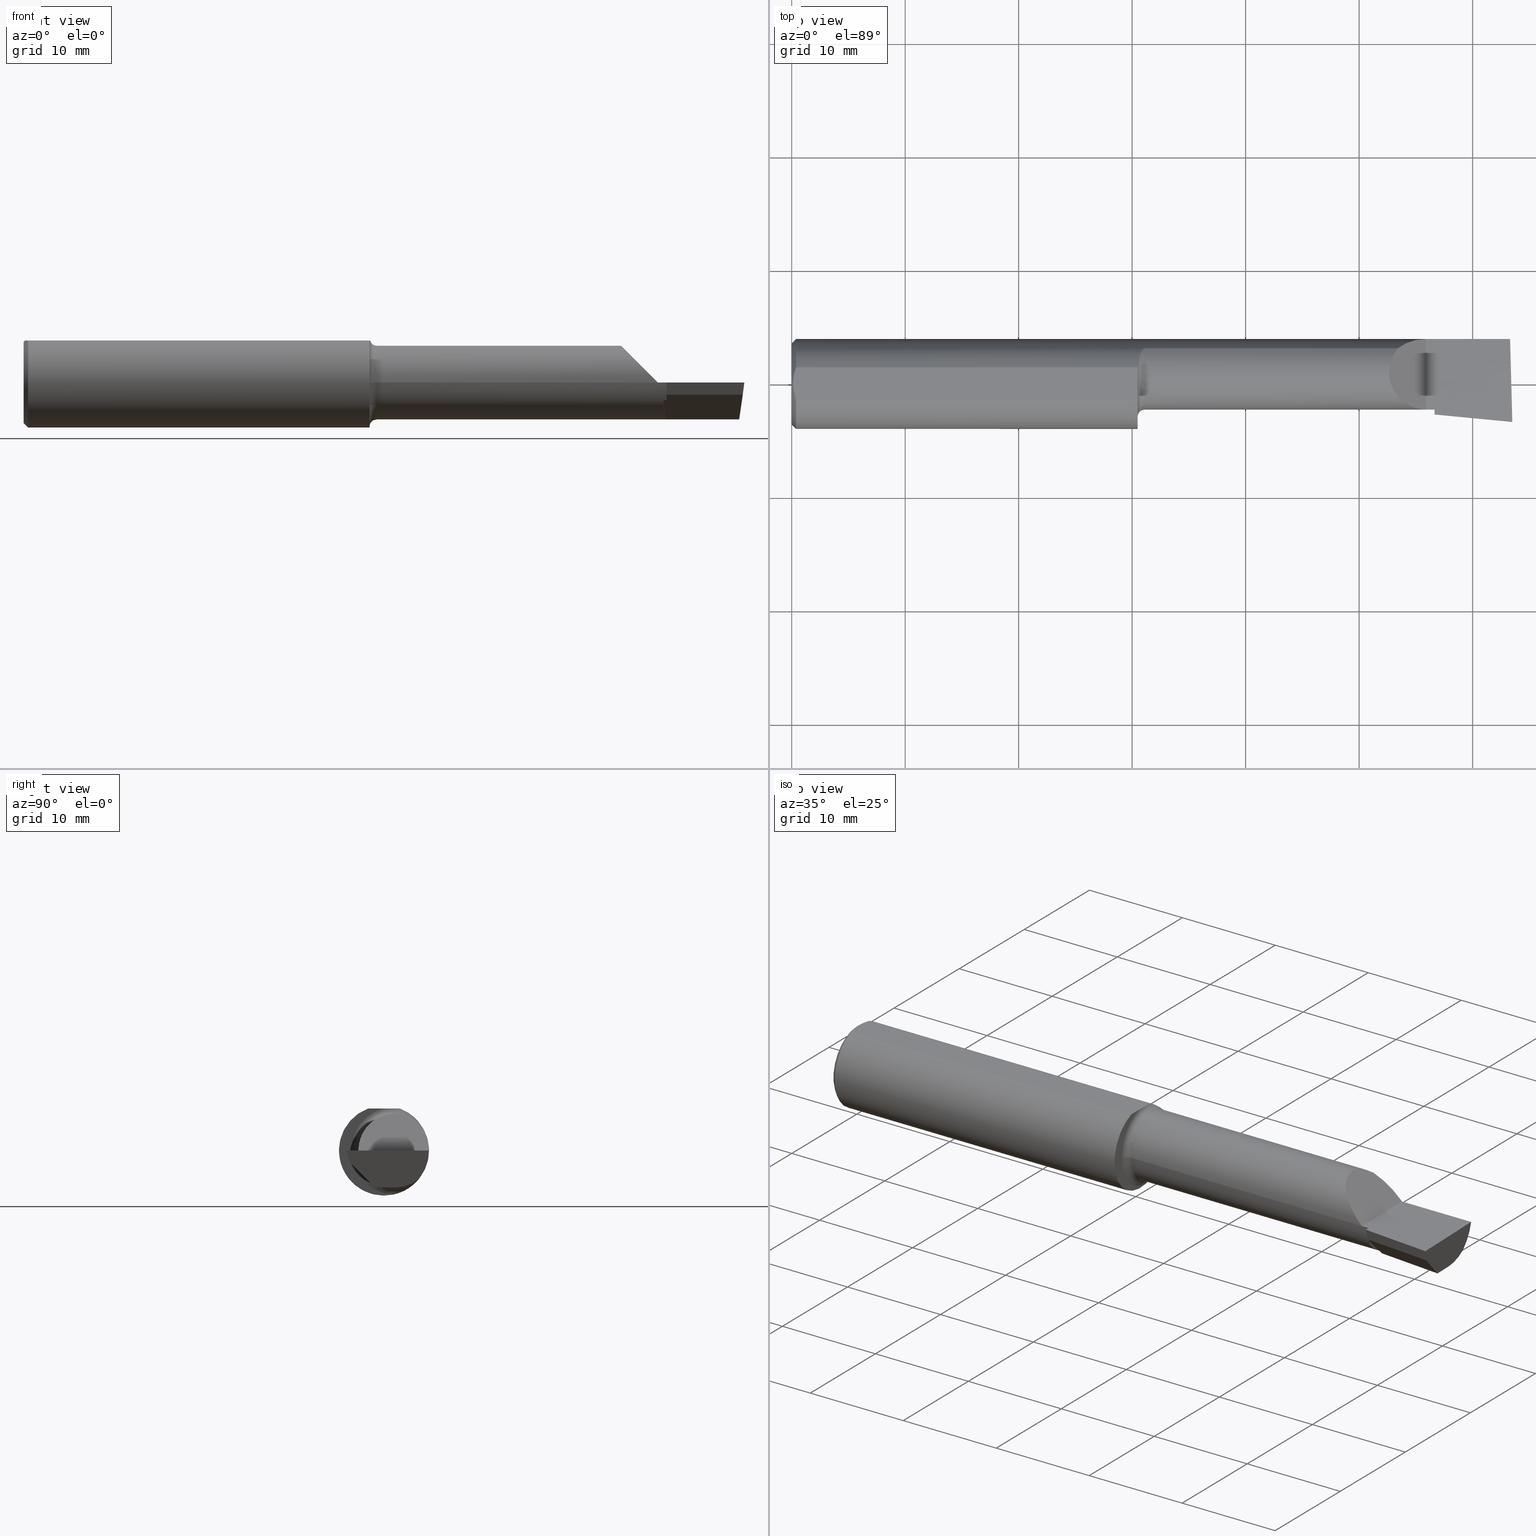
[diagram: canonical four-view strip — front | top / right | iso, engineering-drawing reading convention]
A machine part, canonical four-view strip (front | top / right | iso — engineering-drawing reading convention). The complete STEP part file that produces these views, byte-faithful:
ISO-10303-21;
HEADER;
FILE_DESCRIPTION (( 'STEP AP203' ),
    '1' );
FILE_NAME ('212037-LHB2901250.STEP',
    '2024-08-27T16:55:29',
    ( '' ),
    ( '' ),
    'SwSTEP 2.0',
    'SolidWorks 2024',
    '' );
FILE_SCHEMA (( 'CONFIG_CONTROL_DESIGN' ));
ENDSEC;

DATA;
#1 = CARTESIAN_POINT ( 'NONE',  ( 0.000000000000000000, 0.000000000000000000, 0.000000000000000000 ) ) ;
#2 = AXIS2_PLACEMENT_3D ( 'NONE', #285, #118, #595 ) ;
#3 = ORIENTED_EDGE ( 'NONE', *, *, #632, .F. ) ;
#4 = EDGE_CURVE ( 'NONE', #593, #651, #60, .T. ) ;
#5 = APPROVAL_DATE_TIME ( #485, #508 ) ;
#6 = DIRECTION ( 'NONE',  ( 0.000000000000000000, 0.000000000000000000, 1.000000000000000000 ) ) ;
#7 = PRODUCT_DEFINITION ( 'UNKNOWN', '', #658, #606 ) ;
#8 = LINE ( 'NONE', #337, #645 ) ;
#9 = LINE ( 'NONE', #303, #270 ) ;
#10 = VECTOR ( 'NONE', #161, 39.37007874015748854 ) ;
#11 = LOCAL_TIME ( 9, 55, 29.00000000000000000, #373 ) ;
#12 = ORIENTED_EDGE ( 'NONE', *, *, #97, .T. ) ;
#13 = CARTESIAN_POINT ( 'NONE',  ( 0.01499999999999999424, 0.000000000000000000, -0.1560999999999999888 ) ) ;
#14 = EDGE_CURVE ( 'NONE', #144, #535, #437, .T. ) ;
#15 = FACE_OUTER_BOUND ( 'NONE', #570, .T. ) ;
#16 = VERTEX_POINT ( 'NONE', #379 ) ;
#17 = CARTESIAN_POINT ( 'NONE',  ( 2.500000000000000000, 0.03899999999999996525, -0.1279000000000000137 ) ) ;
#18 = CARTESIAN_POINT ( 'NONE',  ( 2.200000000000000178, -0.08890000000000010394, 9.797174393178826150E-17 ) ) ;
#19 = VERTEX_POINT ( 'NONE', #533 ) ;
#20 = CARTESIAN_POINT ( 'NONE',  ( 2.229999999999999982, -0.07288638121117577140, -0.06196650465749590359 ) ) ;
#21 = CARTESIAN_POINT ( 'NONE',  ( 2.073458044061706751, -0.08890000000000006231, 0.1265419559382920667 ) ) ;
#22 = EDGE_CURVE ( 'NONE', #524, #364, #44, .T. ) ;
#23 = VERTEX_POINT ( 'NONE', #219 ) ;
#24 = EDGE_CURVE ( 'NONE', #576, #466, #314, .T. ) ;
#25 = DIRECTION ( 'NONE',  ( 1.000000000000000000, 0.000000000000000000, 0.000000000000000000 ) ) ;
#26 = CARTESIAN_POINT ( 'NONE',  ( 0.01499999999999999424, 0.000000000000000000, 0.000000000000000000 ) ) ;
#27 = B_SPLINE_CURVE_WITH_KNOTS ( 'NONE', 3,
 ( #255, #358, #202, #210, #371, #42 ),
 .UNSPECIFIED., .F., .F.,
 ( 4, 2, 4 ),
 ( 0.002884734412378666280, 0.003593604306281239329, 0.004302474200183812811 ),
 .UNSPECIFIED. ) ;
#28 = VERTEX_POINT ( 'NONE', #649 ) ;
#29 = CC_DESIGN_PERSON_AND_ORGANIZATION_ASSIGNMENT ( #332, #540, ( #658 ) ) ;
#30 = CARTESIAN_POINT ( 'NONE',  ( 1.199999999999999956, 0.03899999999999998607, 0.000000000000000000 ) ) ;
#31 = DIRECTION ( 'NONE',  ( -0.02677973311239118664, 0.9996413586354002678, 2.612414329932813452E-18 ) ) ;
#32 = EDGE_LOOP ( 'NONE', ( #694, #669, #361, #309, #411, #679 ) ) ;
#33 = LENGTH_MEASURE_WITH_UNIT ( LENGTH_MEASURE( 0.02539999999999999897 ), #86 );
#34 = CARTESIAN_POINT ( 'NONE',  ( 0.01499999999999999944, -0.05497272050753897882, 0.1461000000000000076 ) ) ;
#35 = ORIENTED_EDGE ( 'NONE', *, *, #653, .T. ) ;
#36 = AXIS2_PLACEMENT_3D ( 'NONE', #119, #638, #222 ) ;
#37 = CARTESIAN_POINT ( 'NONE',  ( 0.000000000000000000, -0.05497272050753897882, 0.1461000000000000076 ) ) ;
#38 = ORIENTED_EDGE ( 'NONE', *, *, #286, .F. ) ;
#39 = DIRECTION ( 'NONE',  ( -0.000000000000000000, 2.362393828558074595E-16, 1.000000000000000000 ) ) ;
#40 =( BOUNDED_CURVE ( )  B_SPLINE_CURVE ( 3, ( #347, #561, #564, #394 ),
 .UNSPECIFIED., .F., .F. ) 
 B_SPLINE_CURVE_WITH_KNOTS ( ( 4, 4 ),
 ( 3.414788950605319062, 3.426164066945256437 ),
 .UNSPECIFIED. ) 
 CURVE ( )  GEOMETRIC_REPRESENTATION_ITEM ( )  RATIONAL_B_SPLINE_CURVE ( ( 1.000000000000000000, 0.9999892172564213144, 0.9999892172564213144, 1.000000000000000000 ) ) 
 REPRESENTATION_ITEM ( '' )  );
#41 = ORIENTED_EDGE ( 'NONE', *, *, #474, .T. ) ;
#42 = CARTESIAN_POINT ( 'NONE',  ( 0.01499999999999999424, 0.05497272050753903433, 0.1460999999999999521 ) ) ;
#43 = ORIENTED_EDGE ( 'NONE', *, *, #151, .T. ) ;
#44 =( BOUNDED_CURVE ( )  B_SPLINE_CURVE ( 3, ( #331, #480, #57, #383 ),
 .UNSPECIFIED., .F., .T. ) 
 B_SPLINE_CURVE_WITH_KNOTS ( ( 4, 4 ),
 ( 5.219635427496932323, 5.798005679412930213 ),
 .UNSPECIFIED. ) 
 CURVE ( )  GEOMETRIC_REPRESENTATION_ITEM ( )  RATIONAL_B_SPLINE_CURVE ( ( 1.000000000000000000, 0.9723177149240065376, 0.9723177149240065376, 1.000000000000000000 ) ) 
 REPRESENTATION_ITEM ( '' )  );
#45 = EDGE_CURVE ( 'NONE', #299, #527, #328, .T. ) ;
#46 = CARTESIAN_POINT ( 'NONE',  ( 0.009356849677356088302, -0.03706298561014170767, 0.1461000000000000354 ) ) ;
#47 = CC_DESIGN_APPROVAL ( #460, ( #658 ) ) ;
#48 = DIRECTION ( 'NONE',  ( -4.798168849487817696E-18, -0.7025528302622682242, 0.7116315905652844664 ) ) ;
#49 = CARTESIAN_POINT ( 'NONE',  ( 2.217581325552286042, -0.09140237746813982544, -0.04199999999999994016 ) ) ;
#50 = EDGE_LOOP ( 'NONE', ( #247, #312 ) ) ;
#51 = ADVANCED_FACE ( 'NONE', ( #596 ), #591, .F. ) ;
#52 = CARTESIAN_POINT ( 'NONE',  ( 2.229999999999999982, -0.07288638121117577140, -0.06196650465749590359 ) ) ;
#53 = PERSON_AND_ORGANIZATION ( #230, #283 ) ;
#54 = VECTOR ( 'NONE', #110, 39.37007874015748143 ) ;
#55 = AXIS2_PLACEMENT_3D ( 'NONE', #300, #25, #393 ) ;
#56 = DIRECTION ( 'NONE',  ( 1.000000000000000000, -6.829619984160658046E-18, 0.000000000000000000 ) ) ;
#57 = CARTESIAN_POINT ( 'NONE',  ( 2.220366584553311373, -0.06247635677146577693, -0.08177012336190633834 ) ) ;
#58 = DATE_TIME_ROLE ( 'classification_date' ) ;
#59 = FACE_OUTER_BOUND ( 'NONE', #50, .T. ) ;
#60 = LINE ( 'NONE', #335, #487 ) ;
#61 = CARTESIAN_POINT ( 'NONE',  ( 1.225000000000000089, 0.1221769230769226278, -0.09715971113303976947 ) ) ;
#62 = CARTESIAN_POINT ( 'NONE',  ( 2.229999999999999982, -0.1159019569866647642, 0.000000000000000000 ) ) ;
#63 = ORIENTED_EDGE ( 'NONE', *, *, #209, .T. ) ;
#64 = EDGE_CURVE ( 'NONE', #364, #593, #320, .T. ) ;
#65 = CARTESIAN_POINT ( 'NONE',  ( 1.225000000000000089, 0.1221769230769225167, 0.09715971113303982498 ) ) ;
#66 = CARTESIAN_POINT ( 'NONE',  ( 2.488065891762460069, 0.1561000000000000443, -0.03563149886036994646 ) ) ;
#67 = VERTEX_POINT ( 'NONE', #112 ) ;
#68 = EDGE_CURVE ( 'NONE', #506, #67, #357, .T. ) ;
#69 = PRODUCT ( '212037-LHB2901250', '212037-LHB2901250', '', ( #482 ) ) ;
#70 = CARTESIAN_POINT ( 'NONE',  ( 1.211718925422504034, 0.1096997042182708271, -0.1111484413982584823 ) ) ;
#71 = CARTESIAN_POINT ( 'NONE',  ( 0.000000000000000000, 0.03899999999999999994, 0.000000000000000000 ) ) ;
#72 = ORIENTED_EDGE ( 'NONE', *, *, #642, .F. ) ;
#73 = EDGE_CURVE ( 'NONE', #67, #473, #175, .T. ) ;
#74 = DIRECTION ( 'NONE',  ( 1.000000000000000000, 0.000000000000000000, 0.000000000000000000 ) ) ;
#75 = LINE ( 'NONE', #440, #522 ) ;
#76 = ADVANCED_FACE ( 'NONE', ( #169 ), #601, .F. ) ;
#77 = ORIENTED_EDGE ( 'NONE', *, *, #14, .T. ) ;
#78 = CARTESIAN_POINT ( 'NONE',  ( 1.207643545987175049, 0.09968740490940219967, -0.1204690658458919816 ) ) ;
#79 = CARTESIAN_POINT ( 'NONE',  ( 2.102840288866959728, 0.1221769230769227388, 0.09715971113303956130 ) ) ;
#80 = VECTOR ( 'NONE', #31, 39.37007874015748854 ) ;
#81 = EDGE_LOOP ( 'NONE', ( #634, #296, #539 ) ) ;
#82 = VECTOR ( 'NONE', #242, 39.37007874015748143 ) ;
#83 = PLANE ( 'NONE',  #167 ) ;
#84 = CARTESIAN_POINT ( 'NONE',  ( 1.203337430773764538, 0.08212431379002424481, 0.1335735365034965150 ) ) ;
#85 = VERTEX_POINT ( 'NONE', #160 ) ;
#86 =( LENGTH_UNIT ( ) NAMED_UNIT ( * ) SI_UNIT ( $, .METRE. ) );
#87 = CARTESIAN_POINT ( 'NONE',  ( 1.200713348720346074, 0.05497272050753925637, 0.1460999999999999521 ) ) ;
#88 = ORIENTED_EDGE ( 'NONE', *, *, #603, .T. ) ;
#89 = DIRECTION ( 'NONE',  ( -1.000000000000000000, 6.829619984160658046E-18, -0.000000000000000000 ) ) ;
#90 = ORIENTED_EDGE ( 'NONE', *, *, #64, .T. ) ;
#91 = AXIS2_PLACEMENT_3D ( 'NONE', #500, #396, #179 ) ;
#92 = LINE ( 'NONE', #206, #129 ) ;
#93 = ORIENTED_EDGE ( 'NONE', *, *, #45, .T. ) ;
#94 = DIRECTION ( 'NONE',  ( -1.000000000000000000, 6.829619984160658046E-18, -0.000000000000000000 ) ) ;
#95 = EDGE_CURVE ( 'NONE', #23, #140, #8, .T. ) ;
#96 = VERTEX_POINT ( 'NONE', #587 ) ;
#97 = EDGE_CURVE ( 'NONE', #484, #449, #100, .T. ) ;
#98 = LINE ( 'NONE', #572, #199 ) ;
#99 = DATE_AND_TIME ( #586, #315 ) ;
#100 = LINE ( 'NONE', #324, #599 ) ;
#101 = CIRCLE ( 'NONE', #91, 0.1560999999999999888 ) ;
#102 = LINE ( 'NONE', #481, #412 ) ;
#103 = AXIS2_PLACEMENT_3D ( 'NONE', #30, #681, #156 ) ;
#104 = SHAPE_DEFINITION_REPRESENTATION ( #672, #316 ) ;
#105 = DIRECTION ( 'NONE',  ( 6.829619984160658046E-18, 1.000000000000000000, 0.000000000000000000 ) ) ;
#106 = CARTESIAN_POINT ( 'NONE',  ( 2.229999999999999982, -0.007794043580176791657, -0.1278999999999999859 ) ) ;
#107 = PERSON_AND_ORGANIZATION ( #230, #283 ) ;
#108 = DIRECTION ( 'NONE',  ( 0.02677973311239121093, -0.9996413586354002678, 2.361772610768839557E-16 ) ) ;
#109 = EDGE_LOOP ( 'NONE', ( #150, #395, #181, #244, #665, #267 ) ) ;
#110 = DIRECTION ( 'NONE',  ( -6.829619984160658816E-18, -1.000000000000000000, 6.755756298638184848E-34 ) ) ;
#111 = DATE_AND_TIME ( #594, #224 ) ;
#112 = CARTESIAN_POINT ( 'NONE',  ( 0.01499999999999999424, 0.000000000000000000, -0.1560999999999999888 ) ) ;
#113 = DIMENSIONAL_EXPONENTS ( 1.000000000000000000, 0.000000000000000000, 0.000000000000000000, 0.000000000000000000, 0.000000000000000000, 0.000000000000000000, 0.000000000000000000 ) ;
#114 =( BOUNDED_CURVE ( )  B_SPLINE_CURVE ( 3, ( #79, #243, #661, #664 ),
 .UNSPECIFIED., .F., .T. ) 
 B_SPLINE_CURVE_WITH_KNOTS ( ( 4, 4 ),
 ( 0.8989658999765571812, 1.570796326794896336 ),
 .UNSPECIFIED. ) 
 CURVE ( )  GEOMETRIC_REPRESENTATION_ITEM ( )  RATIONAL_B_SPLINE_CURVE ( ( 1.000000000000000000, 0.9627393467969929119, 0.9627393467969929119, 1.000000000000000000 ) ) 
 REPRESENTATION_ITEM ( '' )  );
#115 = PERSON_AND_ORGANIZATION ( #230, #283 ) ;
#116 = TOROIDAL_SURFACE ( 'NONE', #512, 0.1529000000000001191, 0.02500000000000000486 ) ;
#117 = SECURITY_CLASSIFICATION ( '', '', #644 ) ;
#118 = DIRECTION ( 'NONE',  ( -1.000000000000000000, 6.829619984160658046E-18, -0.000000000000000000 ) ) ;
#119 = CARTESIAN_POINT ( 'NONE',  ( 2.217581325552286042, -0.09140237746813982544, -0.04199999999999994016 ) ) ;
#120 = DIRECTION ( 'NONE',  ( -1.000000000000000000, 6.829619984160658046E-18, -0.000000000000000000 ) ) ;
#121 = CARTESIAN_POINT ( 'NONE',  ( 2.102840288866959728, 0.1221769230769227388, 0.09715971113303956130 ) ) ;
#122 = ORIENTED_EDGE ( 'NONE', *, *, #22, .F. ) ;
#123 = ADVANCED_FACE ( 'NONE', ( #430 ), #183, .T. ) ;
#124 = DIRECTION ( 'NONE',  ( -0.9953961983671787417, 0.09584575252022443925, 1.225797520252680601E-15 ) ) ;
#125 = ADVANCED_FACE ( 'NONE', ( #407 ), #139, .T. ) ;
#126 = EDGE_LOOP ( 'NONE', ( #502, #147, #278, #683 ) ) ;
#127 = CIRCLE ( 'NONE', #625, 0.1529000000000001191 ) ;
#128 = DIRECTION ( 'NONE',  ( 0.1020886612874973703, -0.7038430390621321919, 0.7029814233678642887 ) ) ;
#129 = VECTOR ( 'NONE', #621, 39.37007874015748143 ) ;
#130 = FACE_OUTER_BOUND ( 'NONE', #81, .T. ) ;
#131 = APPLICATION_CONTEXT ( 'configuration controlled 3d designs of mechanical parts and assemblies' ) ;
#132 = ORIENTED_EDGE ( 'NONE', *, *, #577, .T. ) ;
#133 = CARTESIAN_POINT ( 'NONE',  ( 0.01499999999999999424, 0.05497272050753903433, 0.1460999999999999521 ) ) ;
#134 = EDGE_CURVE ( 'NONE', #299, #85, #187, .T. ) ;
#135 = CARTESIAN_POINT ( 'NONE',  ( 2.229999999999999982, -0.1250987282888250673, -0.009079441937751871541 ) ) ;
#136 = ORIENTED_EDGE ( 'NONE', *, *, #577, .F. ) ;
#137 = CC_DESIGN_DATE_AND_TIME_ASSIGNMENT ( #330, #225, ( #7 ) ) ;
#138 = DIRECTION ( 'NONE',  ( -1.000000000000000000, 6.829619984160658046E-18, -0.000000000000000000 ) ) ;
#139 = CYLINDRICAL_SURFACE ( 'NONE', #282, 0.1279000000000000414 ) ;
#140 = VERTEX_POINT ( 'NONE', #298 ) ;
#141 = CARTESIAN_POINT ( 'NONE',  ( 2.229999999999999982, -0.09259815981058529266, -0.04199999999999994016 ) ) ;
#142 = CARTESIAN_POINT ( 'NONE',  ( 1.207875668882802067, 0.09985555054163969269, 0.1202116869044327213 ) ) ;
#143 = AXIS2_PLACEMENT_3D ( 'NONE', #458, #124, #402 ) ;
#144 = VERTEX_POINT ( 'NONE', #354 ) ;
#145 = CARTESIAN_POINT ( 'NONE',  ( 1.225000000000000089, 0.03899999999999999994, 0.000000000000000000 ) ) ;
#146 = CARTESIAN_POINT ( 'NONE',  ( 1.225000000000000089, 0.1221769230769225167, 0.09715971113303982498 ) ) ;
#147 = ORIENTED_EDGE ( 'NONE', *, *, #355, .F. ) ;
#148 = EDGE_CURVE ( 'NONE', #19, #144, #526, .T. ) ;
#149 = DIRECTION ( 'NONE',  ( -0.7071067811865507924, 0.000000000000000000, 0.7071067811865442421 ) ) ;
#150 = ORIENTED_EDGE ( 'NONE', *, *, #377, .F. ) ;
#151 = EDGE_CURVE ( 'NONE', #96, #237, #671, .T. ) ;
#152 = PLANE ( 'NONE',  #614 ) ;
#153 = ORIENTED_EDGE ( 'NONE', *, *, #134, .F. ) ;
#154 = AXIS2_PLACEMENT_3D ( 'NONE', #190, #138, #392 ) ;
#155 = EDGE_CURVE ( 'NONE', #85, #524, #40, .T. ) ;
#156 = DIRECTION ( 'NONE',  ( 0.000000000000000000, -1.000000000000000000, 0.000000000000000000 ) ) ;
#157 = EDGE_CURVE ( 'NONE', #535, #96, #75, .T. ) ;
#158 = ORIENTED_EDGE ( 'NONE', *, *, #499, .T. ) ;
#159 = COORDINATED_UNIVERSAL_TIME_OFFSET ( 8, 0, .BEHIND. ) ;
#160 = CARTESIAN_POINT ( 'NONE',  ( 2.229999999999999982, -0.02439791101555209216, -0.1110815685830198463 ) ) ;
#161 = DIRECTION ( 'NONE',  ( 0.1199690778467074614, -0.3102690083707258517, 0.9430485474275739355 ) ) ;
#162 = COORDINATED_UNIVERSAL_TIME_OFFSET ( 8, 0, .BEHIND. ) ;
#163 = ORIENTED_EDGE ( 'NONE', *, *, #696, .T. ) ;
#164 = ORIENTED_EDGE ( 'NONE', *, *, #475, .F. ) ;
#165 = VECTOR ( 'NONE', #509, 39.37007874015748143 ) ;
#166 = CARTESIAN_POINT ( 'NONE',  ( 1.217713039397279484, 0.1186710145423636176, 0.1014253537327265420 ) ) ;
#167 = AXIS2_PLACEMENT_3D ( 'NONE', #307, #628, #268 ) ;
#168 = COORDINATED_UNIVERSAL_TIME_OFFSET ( 8, 0, .BEHIND. ) ;
#169 = FACE_OUTER_BOUND ( 'NONE', #372, .T. ) ;
#170 = APPLICATION_CONTEXT ( 'configuration controlled 3d designs of mechanical parts and assemblies' ) ;
#171 = APPROVAL_STATUS ( 'not_yet_approved' ) ;
#172 = CARTESIAN_POINT ( 'NONE',  ( 2.200000000000000178, -0.2500000000000000555, 9.797174393178826150E-17 ) ) ;
#173 = APPROVAL_ROLE ( '' ) ;
#174 = VERTEX_POINT ( 'NONE', #236 ) ;
#175 = CIRCLE ( 'NONE', #345, 0.1560999999999999888 ) ;
#176 = CARTESIAN_POINT ( 'NONE',  ( 0.01499999999999999944, -0.05497272050753897882, 0.1461000000000000076 ) ) ;
#177 = DIRECTION ( 'NONE',  ( -6.829619984160658816E-18, -1.000000000000000000, 0.000000000000000000 ) ) ;
#178 = CARTESIAN_POINT ( 'NONE',  ( 2.229999999999999982, -0.2500000000000000555, 9.500418952277011559E-17 ) ) ;
#179 = DIRECTION ( 'NONE',  ( 0.000000000000000000, -1.000000000000000000, 0.000000000000000000 ) ) ;
#180 = CARTESIAN_POINT ( 'NONE',  ( 1.200713348720346074, 0.05497272050753925637, 0.1460999999999999521 ) ) ;
#181 = ORIENTED_EDGE ( 'NONE', *, *, #581, .F. ) ;
#182 = CARTESIAN_POINT ( 'NONE',  ( 1.213285512035948033, 0.1129012003027988348, -0.1078842078934687393 ) ) ;
#183 = CYLINDRICAL_SURFACE ( 'NONE', #467, 0.1279000000000000414 ) ;
#184 = ORIENTED_EDGE ( 'NONE', *, *, #653, .F. ) ;
#185 = VECTOR ( 'NONE', #233, 39.37007874015748143 ) ;
#186 = CARTESIAN_POINT ( 'NONE',  ( 1.220642477297819939, 0.1209866175416250689, -0.09864046781463561842 ) ) ;
#187 = LINE ( 'NONE', #135, #165 ) ;
#188 = EDGE_LOOP ( 'NONE', ( #184, #250, #620, #631, #518 ) ) ;
#189 = EDGE_CURVE ( 'NONE', #19, #535, #114, .T. ) ;
#190 = CARTESIAN_POINT ( 'NONE',  ( 1.225000000000000089, 0.03899999999999998607, 0.000000000000000000 ) ) ;
#191 = DIRECTION ( 'NONE',  ( 0.000000000000000000, -1.000000000000000000, 0.000000000000000000 ) ) ;
#192 = ORIENTED_EDGE ( 'NONE', *, *, #4, .T. ) ;
#193 = CARTESIAN_POINT ( 'NONE',  ( 2.500000000000000000, 0.03899999999999996525, -0.1279000000000000137 ) ) ;
#194 = B_SPLINE_CURVE_WITH_KNOTS ( 'NONE', 3,
 ( #180, #448, #84, #142, #575, #428, #198, #166, #682, #360, #626, #146 ),
 .UNSPECIFIED., .F., .F.,
 ( 4, 2, 2, 2, 2, 4 ),
 ( 5.609278044435371121E-07, 0.001139286486424878446, 0.001708649265735096272, 0.001993330655390204535, 0.002135671350217761486, 0.002278012045045318002 ),
 .UNSPECIFIED. ) ;
#195 = DIRECTION ( 'NONE',  ( -1.000000000000000000, 6.829619984160658046E-18, -0.000000000000000000 ) ) ;
#196 = ORIENTED_EDGE ( 'NONE', *, *, #443, .F. ) ;
#197 = CARTESIAN_POINT ( 'NONE',  ( 2.480278310775617889, 0.03899999999999996525, -0.1279000000000000137 ) ) ;
#198 = CARTESIAN_POINT ( 'NONE',  ( 1.214904289182652697, 0.1154277421181116453, 0.1051401666291003484 ) ) ;
#199 = VECTOR ( 'NONE', #329, 39.37007874015748143 ) ;
#200 = ADVANCED_FACE ( 'NONE', ( #558 ), #674, .T. ) ;
#201 = VERTEX_POINT ( 'NONE', #295 ) ;
#202 = CARTESIAN_POINT ( 'NONE',  ( 0.005929349363809115203, 0.01879672308419498561, 0.1461000000000000076 ) ) ;
#203 = CC_DESIGN_PERSON_AND_ORGANIZATION_ASSIGNMENT ( #107, #640, ( #69 ) ) ;
#204 = PLANE ( 'NONE',  #566 ) ;
#205 = ORIENTED_EDGE ( 'NONE', *, *, #155, .F. ) ;
#206 = CARTESIAN_POINT ( 'NONE',  ( 2.229999999999999982, -0.1068138160192008690, 0.002878732955684685201 ) ) ;
#207 = EDGE_LOOP ( 'NONE', ( #370, #302, #196, #263 ) ) ;
#208 = ADVANCED_FACE ( 'NONE', ( #15 ), #246, .F. ) ;
#209 = EDGE_CURVE ( 'NONE', #527, #85, #454, .T. ) ;
#210 = CARTESIAN_POINT ( 'NONE',  ( 0.009371209226504017067, 0.03711161584255317364, 0.1460999999999999799 ) ) ;
#211 = EDGE_LOOP ( 'NONE', ( #216, #463, #136, #289, #38, #424 ) ) ;
#212 = CIRCLE ( 'NONE', #258, 0.02500000000000000486 ) ;
#213 = APPROVAL_PERSON_ORGANIZATION ( #532, #310, #637 ) ;
#214 = CC_DESIGN_PERSON_AND_ORGANIZATION_ASSIGNMENT ( #432, #438, ( #658 ) ) ;
#215 = APPROVAL_ROLE ( '' ) ;
#216 = ORIENTED_EDGE ( 'NONE', *, *, #334, .T. ) ;
#217 = CARTESIAN_POINT ( 'NONE',  ( 2.500000000000000000, -0.2500000000000000555, 6.829619984160658046E-17 ) ) ;
#218 = APPLICATION_PROTOCOL_DEFINITION ( 'international standard', 'config_control_design', 1994, #170 ) ;
#219 = CARTESIAN_POINT ( 'NONE',  ( 2.229999999999999982, -0.1059019569866646027, 9.550796696599670198E-17 ) ) ;
#220 = DIRECTION ( 'NONE',  ( -1.000000000000000000, 6.829619984160658046E-18, 0.000000000000000000 ) ) ;
#221 = APPROVAL_STATUS ( 'not_yet_approved' ) ;
#222 = DIRECTION ( 'NONE',  ( 0.000000000000000000, -0.7025528302622682242, 0.7116315905652844664 ) ) ;
#223 = AXIS2_PLACEMENT_3D ( 'NONE', #520, #220, #643 ) ;
#224 = LOCAL_TIME ( 9, 55, 29.00000000000000000, #384 ) ;
#225 = DATE_TIME_ROLE ( 'creation_date' ) ;
#226 = DIRECTION ( 'NONE',  ( 1.000000000000000000, 0.000000000000000000, 0.000000000000000000 ) ) ;
#227 = DIRECTION ( 'NONE',  ( 1.000000000000000000, -6.829619984160658046E-18, 0.000000000000000000 ) ) ;
#228 = PERSON_AND_ORGANIZATION ( #230, #283 ) ;
#229 = CARTESIAN_POINT ( 'NONE',  ( 0.000000000000000000, 0.000000000000000000, 0.000000000000000000 ) ) ;
#230 = PERSON ( 'UNSPECIFIED', 'UNSPECIFIED', 'UNSPECIFIED', ('UNSPECIFIED'), ('UNSPECIFIED'), ('UNSPECIFIED') ) ;
#231 = CARTESIAN_POINT ( 'NONE',  ( 2.219243579197731631, -0.07413921331227923961, -0.05964837307989710041 ) ) ;
#232 = ADVANCED_FACE ( 'NONE', ( #501 ), #578, .T. ) ;
#233 = DIRECTION ( 'NONE',  ( -0.000000000000000000, 1.000000000000000000, -2.362393828558074595E-16 ) ) ;
#234 = AXIS2_PLACEMENT_3D ( 'NONE', #376, #431, #149 ) ;
#235 = DIRECTION ( 'NONE',  ( 0.1175789623991730093, 0.000000000000000000, 0.9930635365378863710 ) ) ;
#236 = CARTESIAN_POINT ( 'NONE',  ( 2.494657007549286654, -0.1180817311663149571, -0.04199999999999994016 ) ) ;
#237 = VERTEX_POINT ( 'NONE', #657 ) ;
#238 = UNCERTAINTY_MEASURE_WITH_UNIT (LENGTH_MEASURE( 1.000000000000000082E-05 ), #367, 'distance_accuracy_value', 'NONE');
#239 = LINE ( 'NONE', #610, #477 ) ;
#240 = DIRECTION ( 'NONE',  ( -1.000000000000000000, 6.829619984160658046E-18, -0.000000000000000000 ) ) ;
#241 = ORIENTED_EDGE ( 'NONE', *, *, #474, .F. ) ;
#242 = DIRECTION ( 'NONE',  ( 0.7071067811865390240, 0.000000000000000000, -0.7071067811865560104 ) ) ;
#243 = CARTESIAN_POINT ( 'NONE',  ( 2.130728481662468532, 0.1443546689866651578, 0.06927151833753088239 ) ) ;
#244 = ORIENTED_EDGE ( 'NONE', *, *, #97, .F. ) ;
#245 = CARTESIAN_POINT ( 'NONE',  ( 1.225000000000000089, 0.03899999999999999994, 0.000000000000000000 ) ) ;
#246 = PLANE ( 'NONE',  #143 ) ;
#247 = ORIENTED_EDGE ( 'NONE', *, *, #24, .T. ) ;
#248 = CARTESIAN_POINT ( 'NONE',  ( 2.200000000000000178, 0.1560999999999997667, 9.797174393178826150E-17 ) ) ;
#249 = PLANE ( 'NONE',  #234 ) ;
#250 = ORIENTED_EDGE ( 'NONE', *, *, #276, .T. ) ;
#251 = LINE ( 'NONE', #362, #304 ) ;
#252 = ADVANCED_FACE ( 'NONE', ( #130 ), #549, .F. ) ;
#253 = FACE_OUTER_BOUND ( 'NONE', #453, .T. ) ;
#254 = ORIENTED_EDGE ( 'NONE', *, *, #598, .T. ) ;
#255 = CARTESIAN_POINT ( 'NONE',  ( 0.005000000000000177913, 2.057148876208899831E-17, 0.1460999999999999799 ) ) ;
#256 = AXIS2_PLACEMENT_3D ( 'NONE', #385, #654, #6 ) ;
#257 = CARTESIAN_POINT ( 'NONE',  ( 0.005910707775482461519, -0.01866948012536269463, 0.1460999999999999799 ) ) ;
#258 = AXIS2_PLACEMENT_3D ( 'NONE', #415, #639, #678 ) ;
#259 = EDGE_LOOP ( 'NONE', ( #287, #12, #554, #93 ) ) ;
#260 = LOCAL_TIME ( 9, 55, 29.00000000000000000, #162 ) ;
#261 = DIRECTION ( 'NONE',  ( -0.9953961983671787417, 0.09584575252022423109, -1.833768617864262544E-17 ) ) ;
#262 = EDGE_CURVE ( 'NONE', #627, #546, #194, .T. ) ;
#263 = ORIENTED_EDGE ( 'NONE', *, *, #446, .F. ) ;
#264 = EDGE_CURVE ( 'NONE', #524, #364, #462, .T. ) ;
#265 = CARTESIAN_POINT ( 'NONE',  ( 1.200000000000000400, 0.04153761541478932784, -0.1507758181214158555 ) ) ;
#266 = CC_DESIGN_PERSON_AND_ORGANIZATION_ASSIGNMENT ( #490, #386, ( #7 ) ) ;
#267 = ORIENTED_EDGE ( 'NONE', *, *, #151, .F. ) ;
#268 = DIRECTION ( 'NONE',  ( 0.000000000000000000, -0.3019700370129921319, 0.9533174165755978757 ) ) ;
#269 = ORIENTED_EDGE ( 'NONE', *, *, #455, .F. ) ;
#270 = VECTOR ( 'NONE', #503, 39.37007874015748143 ) ;
#271 = LOCAL_TIME ( 9, 55, 29.00000000000000000, #168 ) ;
#272 = CARTESIAN_POINT ( 'NONE',  ( 0.005000000000000177913, 2.057148876208899831E-17, 0.1460999999999999799 ) ) ;
#273 = APPROVAL_DATE_TIME ( #99, #310 ) ;
#274 = DIRECTION ( 'NONE',  ( -1.000000000000000000, -0.000000000000000000, -0.000000000000000000 ) ) ;
#275 = DIRECTION ( 'NONE',  ( 1.000000000000000000, -6.829619984160658046E-18, 0.000000000000000000 ) ) ;
#276 = EDGE_CURVE ( 'NONE', #306, #28, #212, .T. ) ;
#277 = CARTESIAN_POINT ( 'NONE',  ( 2.226541365962205976, -0.07331194456661031811, -0.06119810979516131233 ) ) ;
#278 = ORIENTED_EDGE ( 'NONE', *, *, #598, .F. ) ;
#279 = CARTESIAN_POINT ( 'NONE',  ( 1.199999999999999956, 0.03217692307692246456, -0.1527476861405821784 ) ) ;
#280 = CALENDAR_DATE ( 2024, 27, 8 ) ;
#281 = ORIENTED_EDGE ( 'NONE', *, *, #155, .T. ) ;
#282 = AXIS2_PLACEMENT_3D ( 'NONE', #305, #240, #177 ) ;
#283 = ORGANIZATION ( 'UNSPECIFIED', 'UNSPECIFIED', '' ) ;
#284 = CALENDAR_DATE ( 2024, 27, 8 ) ;
#285 = CARTESIAN_POINT ( 'NONE',  ( 1.225000000000000089, 0.03899999999999998607, 0.000000000000000000 ) ) ;
#286 = EDGE_CURVE ( 'NONE', #473, #471, #629, .T. ) ;
#287 = ORIENTED_EDGE ( 'NONE', *, *, #584, .F. ) ;
#288 = EDGE_CURVE ( 'NONE', #174, #140, #418, .T. ) ;
#289 = ORIENTED_EDGE ( 'NONE', *, *, #655, .F. ) ;
#290 = CARTESIAN_POINT ( 'NONE',  ( 1.205770389155364830, 0.09238103948165153623, -0.1261792856732153745 ) ) ;
#291 = DIRECTION ( 'NONE',  ( 1.000000000000000000, -6.829619984160658046E-18, 0.000000000000000000 ) ) ;
#292 = EDGE_LOOP ( 'NONE', ( #496, #538, #573, #636 ) ) ;
#293 = AXIS2_PLACEMENT_3D ( 'NONE', #229, #507, #553 ) ;
#294 = CARTESIAN_POINT ( 'NONE',  ( 2.480278310775617889, 0.03899999999999996525, -0.1279000000000000137 ) ) ;
#295 = CARTESIAN_POINT ( 'NONE',  ( 1.199999999999999956, -0.05497272050753900657, 0.1461000000000000076 ) ) ;
#296 = ORIENTED_EDGE ( 'NONE', *, *, #134, .T. ) ;
#297 = CARTESIAN_POINT ( 'NONE',  ( 1.202778396491914537, 0.07658129683222554551, -0.1363479870192731980 ) ) ;
#298 = CARTESIAN_POINT ( 'NONE',  ( 2.500000000000000000, -0.1319000000000001283, 1.024442997624098707E-16 ) ) ;
#299 = VERTEX_POINT ( 'NONE', #106 ) ;
#300 = CARTESIAN_POINT ( 'NONE',  ( 0.01499999999999999424, 0.000000000000000000, 0.000000000000000000 ) ) ;
#301 = DIRECTION ( 'NONE',  ( 1.000000000000000000, 0.000000000000000000, 0.000000000000000000 ) ) ;
#302 = ORIENTED_EDGE ( 'NONE', *, *, #148, .F. ) ;
#303 = CARTESIAN_POINT ( 'NONE',  ( 2.217581325552286042, -0.09140237746813982544, -0.04199999999999994016 ) ) ;
#304 = VECTOR ( 'NONE', #94, 39.37007874015748143 ) ;
#305 = CARTESIAN_POINT ( 'NONE',  ( 0.000000000000000000, 0.03899999999999999994, 0.000000000000000000 ) ) ;
#306 = VERTEX_POINT ( 'NONE', #592 ) ;
#307 = CARTESIAN_POINT ( 'NONE',  ( 2.217581325552286042, -0.09140237746813982544, -0.04199999999999994016 ) ) ;
#308 = CARTESIAN_POINT ( 'NONE',  ( 1.200497536416571087, 0.01428560316177572564, 0.1461000000000000076 ) ) ;
#309 = ORIENTED_EDGE ( 'NONE', *, *, #14, .F. ) ;
#310 = APPROVAL ( #425, 'UNSPECIFIED' ) ;
#311 = LINE ( 'NONE', #517, #80 ) ;
#312 = ORIENTED_EDGE ( 'NONE', *, *, #455, .T. ) ;
#313 = DIRECTION ( 'NONE',  ( -1.000000000000000000, -0.000000000000000000, -0.000000000000000000 ) ) ;
#314 = CIRCLE ( 'NONE', #256, 0.1410999999999996146 ) ;
#315 = LOCAL_TIME ( 9, 55, 29.00000000000000000, #159 ) ;
#316 = ADVANCED_BREP_SHAPE_REPRESENTATION ( '212037-LHB2901250', ( #493, #579 ), #423 ) ;
#317 = EDGE_LOOP ( 'NONE', ( #3, #192, #478, #662 ) ) ;
#318 = FACE_OUTER_BOUND ( 'NONE', #259, .T. ) ;
#319 = EDGE_LOOP ( 'NONE', ( #521, #88, #641, #241, #163, #613, #63, #281, #408, #90, #419 ) ) ;
#320 =( BOUNDED_CURVE ( )  B_SPLINE_CURVE ( 3, ( #231, #387, #277, #52 ),
 .UNSPECIFIED., .F., .T. ) 
 B_SPLINE_CURVE_WITH_KNOTS ( ( 4, 4 ),
 ( 2.847793815029257658, 2.868396356574266282 ),
 .UNSPECIFIED. ) 
 CURVE ( )  GEOMETRIC_REPRESENTATION_ITEM ( )  RATIONAL_B_SPLINE_CURVE ( ( 1.000000000000000000, 0.9999646282529517372, 0.9999646282529517372, 1.000000000000000000 ) ) 
 REPRESENTATION_ITEM ( '' )  );
#321 = FACE_OUTER_BOUND ( 'NONE', #211, .T. ) ;
#322 = ORIENTED_EDGE ( 'NONE', *, *, #352, .F. ) ;
#323 = CARTESIAN_POINT ( 'NONE',  ( 1.199999999999999956, 0.004133650856201329452, 0.1460999999999999521 ) ) ;
#324 = CARTESIAN_POINT ( 'NONE',  ( 2.480292454266014079, 0.03847204783946026746, -0.1279000000000000137 ) ) ;
#325 = VECTOR ( 'NONE', #56, 39.37007874015748143 ) ;
#326 = ADVANCED_FACE ( 'NONE', ( #363 ), #249, .F. ) ;
#327 = CARTESIAN_POINT ( 'NONE',  ( 2.219243579197731631, -0.07413921331227923961, -0.05964837307989710041 ) ) ;
#328 = LINE ( 'NONE', #483, #185 ) ;
#329 = DIRECTION ( 'NONE',  ( 6.829619984160658046E-18, 1.000000000000000000, -1.656870447394628111E-16 ) ) ;
#330 = DATE_AND_TIME ( #284, #260 ) ;
#331 = CARTESIAN_POINT ( 'NONE',  ( 2.224155181711049423, -0.02313027091166865515, -0.1117955251181489279 ) ) ;
#332 = PERSON_AND_ORGANIZATION ( #230, #283 ) ;
#333 = EDGE_CURVE ( 'NONE', #144, #691, #479, .T. ) ;
#334 = EDGE_CURVE ( 'NONE', #201, #16, #98, .T. ) ;
#335 = CARTESIAN_POINT ( 'NONE',  ( 2.229999999999999982, -0.1250987282888250673, -0.009079441937751871541 ) ) ;
#336 = AXIS2_PLACEMENT_3D ( 'NONE', #697, #274, #543 ) ;
#337 = CARTESIAN_POINT ( 'NONE',  ( 2.511267271176985005, -0.1329849148174155893, 6.718165849964441477E-17 ) ) ;
#338 = FACE_OUTER_BOUND ( 'NONE', #109, .T. ) ;
#339 = CARTESIAN_POINT ( 'NONE',  ( 2.481689713451043833, 0.1221769230769228221, -0.09715971113303947804 ) ) ;
#340 = ORIENTED_EDGE ( 'NONE', *, *, #352, .T. ) ;
#341 = DIRECTION ( 'NONE',  ( -1.000000000000000000, 0.000000000000000000, 9.891848030060559526E-17 ) ) ;
#342 = DIRECTION ( 'NONE',  ( -6.829619984160658046E-18, -1.000000000000000000, 0.000000000000000000 ) ) ;
#343 = DIRECTION ( 'NONE',  ( -1.000000000000000000, 6.829619984160658046E-18, -0.000000000000000000 ) ) ;
#344 = ORIENTED_EDGE ( 'NONE', *, *, #4, .F. ) ;
#345 = AXIS2_PLACEMENT_3D ( 'NONE', #701, #491, #439 ) ;
#346 = DIRECTION ( 'NONE',  ( -1.000000000000000000, -0.000000000000000000, -0.000000000000000000 ) ) ;
#347 = CARTESIAN_POINT ( 'NONE',  ( 2.229999999999999982, -0.02439791101555209216, -0.1110815685830198463 ) ) ;
#348 = ORIENTED_EDGE ( 'NONE', *, *, #68, .T. ) ;
#349 = LINE ( 'NONE', #604, #476 ) ;
#350 = CARTESIAN_POINT ( 'NONE',  ( 2.020546539569987310, 0.02604885517094737007, 0.1794534604300111191 ) ) ;
#351 = ORIENTED_EDGE ( 'NONE', *, *, #655, .T. ) ;
#352 = EDGE_CURVE ( 'NONE', #466, #471, #102, .T. ) ;
#353 = LINE ( 'NONE', #13, #82 ) ;
#354 = CARTESIAN_POINT ( 'NONE',  ( 2.200000000000000178, -0.08890000000000010394, 9.797174393178826150E-17 ) ) ;
#355 = EDGE_CURVE ( 'NONE', #427, #306, #127, .T. ) ;
#356 = ORIENTED_EDGE ( 'NONE', *, *, #547, .F. ) ;
#357 = CIRCLE ( 'NONE', #336, 0.1560999999999999888 ) ;
#358 = CARTESIAN_POINT ( 'NONE',  ( 0.005000000000000138882, 0.009391435229055633896, 0.1460999999999999521 ) ) ;
#359 = VECTOR ( 'NONE', #313, 39.37007874015748143 ) ;
#360 = CARTESIAN_POINT ( 'NONE',  ( 1.221394201221187581, 0.1214391589398821913, 0.09808983170724418221 ) ) ;
#361 = ORIENTED_EDGE ( 'NONE', *, *, #157, .F. ) ;
#362 = CARTESIAN_POINT ( 'NONE',  ( -8.735083959741485906E-19, -0.08890000000000006231, 0.000000000000000000 ) ) ;
#363 = FACE_OUTER_BOUND ( 'NONE', #609, .T. ) ;
#364 = VERTEX_POINT ( 'NONE', #327 ) ;
#365 = DIRECTION ( 'NONE',  ( 0.7071067811865390240, 8.659560562355036396E-17, 0.7071067811865560104 ) ) ;
#366 = VERTEX_POINT ( 'NONE', #410 ) ;
#367 =( CONVERSION_BASED_UNIT ( 'INCH', #33 ) LENGTH_UNIT ( ) NAMED_UNIT ( #113 ) );
#368 = AXIS2_PLACEMENT_3D ( 'NONE', #514, #343, #191 ) ;
#369 = VECTOR ( 'NONE', #74, 39.37007874015748143 ) ;
#370 = ORIENTED_EDGE ( 'NONE', *, *, #603, .F. ) ;
#371 = CARTESIAN_POINT ( 'NONE',  ( 0.01187749995209277584, 0.04610609988228757394, 0.1460999999999999799 ) ) ;
#372 = EDGE_LOOP ( 'NONE', ( #72, #659, #164, #344, #582, #689, #205, #153 ) ) ;
#373 = COORDINATED_UNIVERSAL_TIME_OFFSET ( 8, 0, .BEHIND. ) ;
#374 = DIRECTION ( 'NONE',  ( 0.9953961983671787417, -0.09584575252022418945, -9.831095531899268478E-17 ) ) ;
#375 = EDGE_CURVE ( 'NONE', #16, #627, #551, .T. ) ;
#376 = CARTESIAN_POINT ( 'NONE',  ( 2.200000000000000178, -0.2500000000000000555, 9.797174393178826150E-17 ) ) ;
#377 = EDGE_CURVE ( 'NONE', #140, #96, #311, .T. ) ;
#378 = PRODUCT_RELATED_PRODUCT_CATEGORY ( 'detail', '', ( #69 ) ) ;
#379 = CARTESIAN_POINT ( 'NONE',  ( 1.199999999999999956, -0.006091019061449954100, 0.1460999999999999799 ) ) ;
#380 = CARTESIAN_POINT ( 'NONE',  ( 2.489676096502775771, -0.1051998922881460796, -0.08115376371634860919 ) ) ;
#381 =( NAMED_UNIT ( * ) SI_UNIT ( $, .STERADIAN. ) SOLID_ANGLE_UNIT ( ) );
#382 = CARTESIAN_POINT ( 'NONE',  ( 2.482182401943660466, -0.03207644703550099896, -0.1278999999999999859 ) ) ;
#383 = CARTESIAN_POINT ( 'NONE',  ( 2.219243579197731631, -0.07413921331227923961, -0.05964837307989710041 ) ) ;
#384 = COORDINATED_UNIVERSAL_TIME_OFFSET ( 8, 0, .BEHIND. ) ;
#385 = CARTESIAN_POINT ( 'NONE',  ( 0.000000000000000000, 0.000000000000000000, 0.000000000000000000 ) ) ;
#386 = PERSON_AND_ORGANIZATION_ROLE ( 'creator' ) ;
#387 = CARTESIAN_POINT ( 'NONE',  ( 2.222955765532498518, -0.07372957003912070095, -0.06042537193620695773 ) ) ;
#388 =( BOUNDED_CURVE ( )  B_SPLINE_CURVE ( 3, ( #685, #633, #464, #197 ),
 .UNSPECIFIED., .F., .T. ) 
 B_SPLINE_CURVE_WITH_KNOTS ( ( 4, 4 ),
 ( 5.797683689972070731, 6.505699533271590340 ),
 .UNSPECIFIED. ) 
 CURVE ( )  GEOMETRIC_REPRESENTATION_ITEM ( )  RATIONAL_B_SPLINE_CURVE ( ( 1.000000000000000000, 0.9586605761426444383, 0.9586605761426444383, 1.000000000000000000 ) ) 
 REPRESENTATION_ITEM ( '' )  );
#389 = AXIS2_PLACEMENT_3D ( 'NONE', #62, #291, #444 ) ;
#390 = AXIS2_PLACEMENT_3D ( 'NONE', #145, #468, #571 ) ;
#391 = LINE ( 'NONE', #178, #54 ) ;
#392 = DIRECTION ( 'NONE',  ( 0.000000000000000000, -1.000000000000000000, 0.000000000000000000 ) ) ;
#393 = DIRECTION ( 'NONE',  ( 0.000000000000000000, 0.000000000000000000, -1.000000000000000000 ) ) ;
#394 = CARTESIAN_POINT ( 'NONE',  ( 2.224155181711049423, -0.02313027091166865515, -0.1117955251181489279 ) ) ;
#395 = ORIENTED_EDGE ( 'NONE', *, *, #288, .F. ) ;
#396 = DIRECTION ( 'NONE',  ( -1.000000000000000000, 6.829619984160658046E-18, -0.000000000000000000 ) ) ;
#397 = DIRECTION ( 'NONE',  ( 0.000000000000000000, 0.000000000000000000, -1.000000000000000000 ) ) ;
#398 = ORIENTED_EDGE ( 'NONE', *, *, #547, .T. ) ;
#399 = CIRCLE ( 'NONE', #293, 0.1410999999999996146 ) ;
#400 = CC_DESIGN_APPROVAL ( #508, ( #7 ) ) ;
#401 = CARTESIAN_POINT ( 'NONE',  ( 1.217557852537987095, 0.1186103045499234260, -0.1015006042428818894 ) ) ;
#402 = DIRECTION ( 'NONE',  ( -0.09584575252022443925, -0.9953961983671787417, 0.000000000000000000 ) ) ;
#403 = ORIENTED_EDGE ( 'NONE', *, *, #355, .T. ) ;
#404 = ADVANCED_FACE ( 'NONE', ( #253 ), #686, .F. ) ;
#405 = CARTESIAN_POINT ( 'NONE',  ( 1.223773678789314978, 0.1221769230769226278, -0.09715971113303982498 ) ) ;
#406 = ADVANCED_FACE ( 'NONE', ( #469 ), #204, .F. ) ;
#407 = FACE_OUTER_BOUND ( 'NONE', #207, .T. ) ;
#408 = ORIENTED_EDGE ( 'NONE', *, *, #22, .T. ) ;
#409 = CARTESIAN_POINT ( 'NONE',  ( 2.500000000000000000, 0.2061000000000000332, 0.1460999999999999521 ) ) ;
#410 = CARTESIAN_POINT ( 'NONE',  ( 1.225000000000000089, 0.1221769230769226278, -0.09715971113303976947 ) ) ;
#411 = ORIENTED_EDGE ( 'NONE', *, *, #333, .T. ) ;
#412 = VECTOR ( 'NONE', #365, 39.37007874015748143 ) ;
#413 = FACE_OUTER_BOUND ( 'NONE', #188, .T. ) ;
#414 = APPROVAL_PERSON_ORGANIZATION ( #115, #460, #215 ) ;
#415 = CARTESIAN_POINT ( 'NONE',  ( 1.225000000000000089, -0.1139000000000001261, 0.000000000000000000 ) ) ;
#416 = ORIENTED_EDGE ( 'NONE', *, *, #499, .F. ) ;
#417 = PLANE ( 'NONE',  #435 ) ;
#418 = LINE ( 'NONE', #380, #10 ) ;
#419 = ORIENTED_EDGE ( 'NONE', *, *, #632, .T. ) ;
#420 = LINE ( 'NONE', #529, #489 ) ;
#421 = ORIENTED_EDGE ( 'NONE', *, *, #286, .T. ) ;
#422 = VECTOR ( 'NONE', #275, 39.37007874015748143 ) ;
#423 =( GEOMETRIC_REPRESENTATION_CONTEXT ( 3 ) GLOBAL_UNCERTAINTY_ASSIGNED_CONTEXT ( ( #238 ) ) GLOBAL_UNIT_ASSIGNED_CONTEXT ( ( #367, #699, #381 ) ) REPRESENTATION_CONTEXT ( 'NONE', 'WORKASPACE' ) );
#424 = ORIENTED_EDGE ( 'NONE', *, *, #648, .F. ) ;
#425 = APPROVAL_STATUS ( 'not_yet_approved' ) ;
#426 = EDGE_CURVE ( 'NONE', #691, #23, #391, .T. ) ;
#427 = VERTEX_POINT ( 'NONE', #279 ) ;
#428 = CARTESIAN_POINT ( 'NONE',  ( 1.213476732597053243, 0.1130158469709905689, 0.1077376761497233215 ) ) ;
#429 = APPLICATION_PROTOCOL_DEFINITION ( 'international standard', 'config_control_design', 1994, #131 ) ;
#430 = FACE_OUTER_BOUND ( 'NONE', #319, .T. ) ;
#431 = DIRECTION ( 'NONE',  ( -0.7071067811865442421, 0.000000000000000000, -0.7071067811865507924 ) ) ;
#432 = PERSON_AND_ORGANIZATION ( #230, #283 ) ;
#433 = AXIS2_PLACEMENT_3D ( 'NONE', #611, #608, #451 ) ;
#434 = ORIENTED_EDGE ( 'NONE', *, *, #73, .T. ) ;
#435 = AXIS2_PLACEMENT_3D ( 'NONE', #409, #580, #472 ) ;
#436 = DIRECTION ( 'NONE',  ( 0.000000000000000000, 0.000000000000000000, 1.000000000000000000 ) ) ;
#437 = LINE ( 'NONE', #172, #692 ) ;
#438 = PERSON_AND_ORGANIZATION_ROLE ( 'design_supplier' ) ;
#439 = DIRECTION ( 'NONE',  ( 0.000000000000000000, 0.000000000000000000, 1.000000000000000000 ) ) ;
#440 = CARTESIAN_POINT ( 'NONE',  ( 3.121792066109142165E-32, 0.1560999999999999333, 3.155924005931204823E-16 ) ) ;
#441 = CC_DESIGN_SECURITY_CLASSIFICATION ( #117, ( #658 ) ) ;
#442 = CARTESIAN_POINT ( 'NONE',  ( 2.229999999999999982, 0.03899999999999996525, -0.1278999999999999859 ) ) ;
#443 = EDGE_CURVE ( 'NONE', #546, #19, #492, .T. ) ;
#444 = DIRECTION ( 'NONE',  ( 6.829619984160658046E-18, 1.000000000000000000, 0.000000000000000000 ) ) ;
#445 = ORIENTED_EDGE ( 'NONE', *, *, #189, .F. ) ;
#446 = EDGE_CURVE ( 'NONE', #28, #546, #612, .T. ) ;
#447 = LINE ( 'NONE', #17, #567 ) ;
#448 = CARTESIAN_POINT ( 'NONE',  ( 1.201630938536527804, 0.06913608029031610702, 0.1407707842656650832 ) ) ;
#449 = VERTEX_POINT ( 'NONE', #382 ) ;
#450 = CARTESIAN_POINT ( 'NONE',  ( 0.005000000000000177913, 2.057148876208899831E-17, 0.1460999999999999799 ) ) ;
#451 = DIRECTION ( 'NONE',  ( 0.000000000000000000, 0.000000000000000000, 1.000000000000000000 ) ) ;
#452 = ADVANCED_FACE ( 'NONE', ( #59 ), #486, .F. ) ;
#453 = EDGE_LOOP ( 'NONE', ( #403, #35, #510, #416 ) ) ;
#454 = CIRCLE ( 'NONE', #368, 0.1278999999999999859 ) ;
#455 = EDGE_CURVE ( 'NONE', #466, #576, #399, .T. ) ;
#456 = APPROVAL_PERSON_ORGANIZATION ( #53, #508, #173 ) ;
#457 = PLANE ( 'NONE',  #542 ) ;
#458 = CARTESIAN_POINT ( 'NONE',  ( 2.231521054637353174, 0.05336724426983579378, -0.1900000000000009737 ) ) ;
#459 = ORIENTED_EDGE ( 'NONE', *, *, #157, .T. ) ;
#460 = APPROVAL ( #221, 'UNSPECIFIED' ) ;
#461 = CARTESIAN_POINT ( 'NONE',  ( 0.000000000000000000, 0.000000000000000000, -0.1410999999999996146 ) ) ;
#462 = LINE ( 'NONE', #49, #497 ) ;
#463 = ORIENTED_EDGE ( 'NONE', *, *, #375, .T. ) ;
#464 = CARTESIAN_POINT ( 'NONE',  ( 2.479452310584073782, 0.06983316589608450087, -0.1279000000000000692 ) ) ;
#465 = CARTESIAN_POINT ( 'NONE',  ( -8.735083959741173905E-19, -0.08890000000000003455, 3.155924005931204823E-16 ) ) ;
#466 = VERTEX_POINT ( 'NONE', #557 ) ;
#467 = AXIS2_PLACEMENT_3D ( 'NONE', #71, #504, #619 ) ;
#468 = DIRECTION ( 'NONE',  ( -1.000000000000000000, 6.829619984160658046E-18, -0.000000000000000000 ) ) ;
#469 = FACE_OUTER_BOUND ( 'NONE', #32, .T. ) ;
#470 = EDGE_LOOP ( 'NONE', ( #459, #43, #41, #254, #158, #530, #565, #687, #132, #624, #585, #559 ) ) ;
#471 = VERTEX_POINT ( 'NONE', #450 ) ;
#472 = DIRECTION ( 'NONE',  ( 0.000000000000000000, 1.000000000000000000, -1.656870447394628111E-16 ) ) ;
#473 = VERTEX_POINT ( 'NONE', #176 ) ;
#474 = EDGE_CURVE ( 'NONE', #237, #366, #349, .T. ) ;
#475 = EDGE_CURVE ( 'NONE', #651, #174, #9, .T. ) ;
#476 = VECTOR ( 'NONE', #120, 39.37007874015748143 ) ;
#477 = VECTOR ( 'NONE', #128, 39.37007874015748854 ) ;
#478 = ORIENTED_EDGE ( 'NONE', *, *, #623, .T. ) ;
#479 = LINE ( 'NONE', #465, #422 ) ;
#480 = CARTESIAN_POINT ( 'NONE',  ( 2.222050397172008918, -0.04498929411774009457, -0.09964739099361778762 ) ) ;
#481 = CARTESIAN_POINT ( 'NONE',  ( 0.01499999999999999424, 1.911673653469018068E-17, 0.1560999999999999888 ) ) ;
#482 = MECHANICAL_CONTEXT ( 'NONE', #131, 'mechanical' ) ;
#483 = CARTESIAN_POINT ( 'NONE',  ( 2.229999999999999982, 0.03899999999999996525, -0.1279000000000000137 ) ) ;
#484 = VERTEX_POINT ( 'NONE', #294 ) ;
#485 = DATE_AND_TIME ( #280, #271 ) ;
#486 = PLANE ( 'NONE',  #590 ) ;
#487 = VECTOR ( 'NONE', #48, 39.37007874015748143 ) ;
#488 = DIRECTION ( 'NONE',  ( -0.000000000000000000, 1.000000000000000000, -0.000000000000000000 ) ) ;
#489 = VECTOR ( 'NONE', #261, 39.37007874015748143 ) ;
#490 = PERSON_AND_ORGANIZATION ( #230, #283 ) ;
#491 = DIRECTION ( 'NONE',  ( -1.000000000000000000, -0.000000000000000000, -0.000000000000000000 ) ) ;
#492 = LINE ( 'NONE', #647, #325 ) ;
#493 = MANIFOLD_SOLID_BREP ( 'Extrude7', #668 ) ;
#494 = CARTESIAN_POINT ( 'NONE',  ( 2.229999999999999982, -0.1159019569866647642, 0.000000000000000000 ) ) ;
#495 = CARTESIAN_POINT ( 'NONE',  ( 1.201725101710128696, 0.06813315891665767954, -0.1407628789512505862 ) ) ;
#496 = ORIENTED_EDGE ( 'NONE', *, *, #475, .T. ) ;
#497 = VECTOR ( 'NONE', #630, 39.37007874015748143 ) ;
#498 = CC_DESIGN_APPROVAL ( #310, ( #117 ) ) ;
#499 = EDGE_CURVE ( 'NONE', #427, #201, #101, .T. ) ;
#500 = CARTESIAN_POINT ( 'NONE',  ( 1.199999999999999956, 0.000000000000000000, 0.000000000000000000 ) ) ;
#501 = FACE_OUTER_BOUND ( 'NONE', #675, .T. ) ;
#502 = ORIENTED_EDGE ( 'NONE', *, *, #276, .F. ) ;
#503 = DIRECTION ( 'NONE',  ( 0.9953961983671787417, -0.09584575252022421721, -0.000000000000000000 ) ) ;
#504 = DIRECTION ( 'NONE',  ( -1.000000000000000000, 6.829619984160658046E-18, -0.000000000000000000 ) ) ;
#505 = EDGE_CURVE ( 'NONE', #366, #28, #646, .T. ) ;
#506 = VERTEX_POINT ( 'NONE', #133 ) ;
#507 = DIRECTION ( 'NONE',  ( -1.000000000000000000, -0.000000000000000000, -0.000000000000000000 ) ) ;
#508 = APPROVAL ( #171, 'UNSPECIFIED' ) ;
#509 = DIRECTION ( 'NONE',  ( -4.798168849487817696E-18, -0.7025528302622682242, 0.7116315905652844664 ) ) ;
#510 = ORIENTED_EDGE ( 'NONE', *, *, #334, .F. ) ;
#511 = CONICAL_SURFACE ( 'NONE', #55, 0.1560999999999999888, 0.7853981633974602694 ) ;
#512 = AXIS2_PLACEMENT_3D ( 'NONE', #245, #673, #342 ) ;
#513 = CARTESIAN_POINT ( 'NONE',  ( 2.224155181711049423, -0.02313027091166865515, -0.1117955251181489279 ) ) ;
#514 = CARTESIAN_POINT ( 'NONE',  ( 2.229999999999999982, 0.03899999999999997913, 0.000000000000000000 ) ) ;
#515 = ORIENTED_EDGE ( 'NONE', *, *, #148, .T. ) ;
#516 = CARTESIAN_POINT ( 'NONE',  ( 2.229999999999999982, -0.08890000000000000679, 0.000000000000000000 ) ) ;
#517 = CARTESIAN_POINT ( 'NONE',  ( 2.503161552210378282, -0.2499153041001321018, 6.798346390156494500E-17 ) ) ;
#518 = ORIENTED_EDGE ( 'NONE', *, *, #375, .F. ) ;
#519 = ADVANCED_FACE ( 'NONE', ( #338 ), #457, .F. ) ;
#520 = CARTESIAN_POINT ( 'NONE',  ( 1.199999999999999956, -0.1139000000000001261, 0.000000000000000000 ) ) ;
#521 = ORIENTED_EDGE ( 'NONE', *, *, #333, .F. ) ;
#522 = VECTOR ( 'NONE', #301, 39.37007874015748143 ) ;
#523 = AXIS2_PLACEMENT_3D ( 'NONE', #635, #89, #676 ) ;
#524 = VERTEX_POINT ( 'NONE', #513 ) ;
#525 = LINE ( 'NONE', #37, #359 ) ;
#526 =( BOUNDED_CURVE ( )  B_SPLINE_CURVE ( 3, ( #121, #350, #21, #18 ),
 .UNSPECIFIED., .F., .T. ) 
 B_SPLINE_CURVE_WITH_KNOTS ( ( 4, 4 ),
 ( 5.575169463880067511, 7.853981633974482790 ),
 .UNSPECIFIED. ) 
 CURVE ( )  GEOMETRIC_REPRESENTATION_ITEM ( )  RATIONAL_B_SPLINE_CURVE ( ( 1.000000000000000000, 0.6120893875309953991, 0.6120893875309953991, 1.000000000000000000 ) ) 
 REPRESENTATION_ITEM ( '' )  );
#527 = VERTEX_POINT ( 'NONE', #442 ) ;
#528 = ADVANCED_FACE ( 'NONE', ( #660 ), #511, .T. ) ;
#529 = CARTESIAN_POINT ( 'NONE',  ( 2.493055307542864529, -0.03312338876679009336, -0.1278999999999999859 ) ) ;
#530 = ORIENTED_EDGE ( 'NONE', *, *, #648, .T. ) ;
#531 = DIRECTION ( 'NONE',  ( -9.891848030060559526E-17, 0.000000000000000000, -1.000000000000000000 ) ) ;
#532 = PERSON_AND_ORGANIZATION ( #230, #283 ) ;
#533 = CARTESIAN_POINT ( 'NONE',  ( 2.102840288866959728, 0.1221769230769227388, 0.09715971113303956130 ) ) ;
#534 = CARTESIAN_POINT ( 'NONE',  ( 0.005000000000000139749, -0.009384304010803560733, 0.1460999999999999799 ) ) ;
#535 = VERTEX_POINT ( 'NONE', #248 ) ;
#536 = CARTESIAN_POINT ( 'NONE',  ( 1.199999999999999956, -0.006091019061449954100, 0.1460999999999999799 ) ) ;
#537 = CARTESIAN_POINT ( 'NONE',  ( 0.000000000000000000, 0.000000000000000000, 0.000000000000000000 ) ) ;
#538 = ORIENTED_EDGE ( 'NONE', *, *, #288, .T. ) ;
#539 = ORIENTED_EDGE ( 'NONE', *, *, #209, .F. ) ;
#540 = PERSON_AND_ORGANIZATION_ROLE ( 'creator' ) ;
#541 = DIRECTION ( 'NONE',  ( 0.000000000000000000, 0.000000000000000000, -1.000000000000000000 ) ) ;
#542 = AXIS2_PLACEMENT_3D ( 'NONE', #666, #615, #235 ) ;
#543 = DIRECTION ( 'NONE',  ( 0.000000000000000000, 0.000000000000000000, 1.000000000000000000 ) ) ;
#544 = CALENDAR_DATE ( 2024, 27, 8 ) ;
#545 = ADVANCED_FACE ( 'NONE', ( #607 ), #116, .F. ) ;
#546 = VERTEX_POINT ( 'NONE', #65 ) ;
#547 = EDGE_CURVE ( 'NONE', #576, #67, #353, .T. ) ;
#548 = LINE ( 'NONE', #560, #369 ) ;
#549 = PLANE ( 'NONE',  #389 ) ;
#550 = CC_DESIGN_DATE_AND_TIME_ASSIGNMENT ( #589, #58, ( #117 ) ) ;
#551 = B_SPLINE_CURVE_WITH_KNOTS ( 'NONE', 3,
 ( #536, #323, #308, #622, #698, #87 ),
 .UNSPECIFIED., .F., .F.,
 ( 4, 2, 4 ),
 ( 0.01118866809925229272, 0.01196373645042567158, 0.01273880480159904870 ),
 .UNSPECIFIED. ) ;
#552 = ORIENTED_EDGE ( 'NONE', *, *, #24, .F. ) ;
#553 = DIRECTION ( 'NONE',  ( 0.000000000000000000, 0.000000000000000000, 1.000000000000000000 ) ) ;
#554 = ORIENTED_EDGE ( 'NONE', *, *, #642, .T. ) ;
#555 = AXIS2_PLACEMENT_3D ( 'NONE', #26, #616, #397 ) ;
#556 = CIRCLE ( 'NONE', #103, 0.1529000000000001191 ) ;
#557 = CARTESIAN_POINT ( 'NONE',  ( 0.000000000000000000, 1.819825143532964315E-17, 0.1410999999999996146 ) ) ;
#558 = FACE_OUTER_BOUND ( 'NONE', #470, .T. ) ;
#559 = ORIENTED_EDGE ( 'NONE', *, *, #189, .T. ) ;
#560 = CARTESIAN_POINT ( 'NONE',  ( 0.000000000000000000, 0.05497272050753903433, 0.1460999999999999521 ) ) ;
#561 = CARTESIAN_POINT ( 'NONE',  ( 2.228090435553064630, -0.02397672015612764551, -0.1113219560835474881 ) ) ;
#562 = EDGE_LOOP ( 'NONE', ( #269, #340, #351, #348, #356 ) ) ;
#563 = CARTESIAN_POINT ( 'NONE',  ( 1.216392177358947890, 0.1172252637552312904, -0.1031022108064124920 ) ) ;
#564 = CARTESIAN_POINT ( 'NONE',  ( 2.226142141782129436, -0.02355416889857130450, -0.1115599441614216064 ) ) ;
#565 = ORIENTED_EDGE ( 'NONE', *, *, #73, .F. ) ;
#566 = AXIS2_PLACEMENT_3D ( 'NONE', #217, #531, #341 ) ;
#567 = VECTOR ( 'NONE', #346, 39.37007874015748143 ) ;
#568 = DIRECTION ( 'NONE',  ( 0.000000000000000000, -1.000000000000000000, 2.362393828558074595E-16 ) ) ;
#569 = DIRECTION ( 'NONE',  ( 0.000000000000000000, -1.000000000000000000, 0.000000000000000000 ) ) ;
#570 = EDGE_LOOP ( 'NONE', ( #617, #122 ) ) ;
#571 = DIRECTION ( 'NONE',  ( -6.829619984160658046E-18, -1.000000000000000000, 0.000000000000000000 ) ) ;
#572 = CARTESIAN_POINT ( 'NONE',  ( 1.199999999999999956, 0.2061000000000000332, 0.1460999999999999521 ) ) ;
#573 = ORIENTED_EDGE ( 'NONE', *, *, #95, .F. ) ;
#574 = CARTESIAN_POINT ( 'NONE',  ( 1.200339637342208388, 0.05067448177557429267, -0.1479473295851734815 ) ) ;
#575 = CARTESIAN_POINT ( 'NONE',  ( 1.209698108077551071, 0.1054404049151043687, 0.1153284228895399138 ) ) ;
#576 = VERTEX_POINT ( 'NONE', #461 ) ;
#577 = EDGE_CURVE ( 'NONE', #506, #627, #548, .T. ) ;
#578 = CONICAL_SURFACE ( 'NONE', #555, 0.1560999999999999888, 0.7853981633974602694 ) ;
#579 = AXIS2_PLACEMENT_3D ( 'NONE', #1, #436, #650 ) ;
#580 = DIRECTION ( 'NONE',  ( 0.000000000000000000, -1.656870447394628111E-16, -1.000000000000000000 ) ) ;
#581 = EDGE_CURVE ( 'NONE', #449, #174, #239, .T. ) ;
#582 = ORIENTED_EDGE ( 'NONE', *, *, #64, .F. ) ;
#583 = FACE_OUTER_BOUND ( 'NONE', #292, .T. ) ;
#584 = EDGE_CURVE ( 'NONE', #484, #527, #447, .T. ) ;
#585 = ORIENTED_EDGE ( 'NONE', *, *, #443, .T. ) ;
#586 = CALENDAR_DATE ( 2024, 27, 8 ) ;
#587 = CARTESIAN_POINT ( 'NONE',  ( 2.492284669827090404, 0.1560999999999998500, 6.904452464043948710E-17 ) ) ;
#588 = CARTESIAN_POINT ( 'NONE',  ( 0.01190375560897322625, -0.04618065518901639382, 0.1461000000000000076 ) ) ;
#589 = DATE_AND_TIME ( #544, #11 ) ;
#590 = AXIS2_PLACEMENT_3D ( 'NONE', #537, #226, #541 ) ;
#591 = PLANE ( 'NONE',  #656 ) ;
#592 = CARTESIAN_POINT ( 'NONE',  ( 1.199999999999999956, -0.1139000000000001539, 0.000000000000000000 ) ) ;
#593 = VERTEX_POINT ( 'NONE', #20 ) ;
#594 = CALENDAR_DATE ( 2024, 27, 8 ) ;
#595 = DIRECTION ( 'NONE',  ( 0.000000000000000000, -1.000000000000000000, 0.000000000000000000 ) ) ;
#596 = FACE_OUTER_BOUND ( 'NONE', #317, .T. ) ;
#597 = PERSON_AND_ORGANIZATION_ROLE ( 'classification_officer' ) ;
#598 = EDGE_CURVE ( 'NONE', #366, #427, #602, .T. ) ;
#599 = VECTOR ( 'NONE', #108, 39.37007874015748143 ) ;
#600 = ADVANCED_FACE ( 'NONE', ( #321 ), #417, .F. ) ;
#601 = PLANE ( 'NONE',  #36 ) ;
#602 = B_SPLINE_CURVE_WITH_KNOTS ( 'NONE', 3,
 ( #61, #405, #663, #186, #618, #401, #563, #182, #70, #78, #290, #297, #495, #574, #265, #690 ),
 .UNSPECIFIED., .F., .F.,
 ( 4, 2, 2, 2, 2, 2, 2, 4 ),
 ( 1.968192473106401547E-07, 9.217006773806006819E-05, 0.0001841433162288094976, 0.0003680898132103134252, 0.0007359828071733167266, 0.001471768795099326907, 0.002207554783025337305, 0.002943340770951347919 ),
 .UNSPECIFIED. ) ;
#603 = EDGE_CURVE ( 'NONE', #144, #28, #251, .T. ) ;
#604 = CARTESIAN_POINT ( 'NONE',  ( 1.727500000000000036, 0.1221769230769228221, -0.09715971113303947804 ) ) ;
#605 = CARTESIAN_POINT ( 'NONE',  ( 2.484397555013683423, 0.1443546689866652688, -0.06927151833753072974 ) ) ;
#606 = DESIGN_CONTEXT ( 'detailed design', #170, 'design' ) ;
#607 = FACE_OUTER_BOUND ( 'NONE', #126, .T. ) ;
#608 = DIRECTION ( 'NONE',  ( -1.000000000000000000, -0.000000000000000000, -0.000000000000000000 ) ) ;
#609 = EDGE_LOOP ( 'NONE', ( #445, #515, #77 ) ) ;
#610 = CARTESIAN_POINT ( 'NONE',  ( 2.489852269752854230, -0.08495580699522407853, -0.07508537277742928506 ) ) ;
#611 = CARTESIAN_POINT ( 'NONE',  ( 0.000000000000000000, 0.000000000000000000, 0.000000000000000000 ) ) ;
#612 = CIRCLE ( 'NONE', #2, 0.1279000000000001247 ) ;
#613 = ORIENTED_EDGE ( 'NONE', *, *, #584, .T. ) ;
#614 = AXIS2_PLACEMENT_3D ( 'NONE', #193, #39, #568 ) ;
#615 = DIRECTION ( 'NONE',  ( -0.9927123040216839778, -0.02659410830638095011, 0.1175373763844856645 ) ) ;
#616 = DIRECTION ( 'NONE',  ( 1.000000000000000000, 0.000000000000000000, 0.000000000000000000 ) ) ;
#617 = ORIENTED_EDGE ( 'NONE', *, *, #264, .T. ) ;
#618 = CARTESIAN_POINT ( 'NONE',  ( 1.219807963827557629, 0.1204260765459409382, -0.09932603807424206233 ) ) ;
#619 = DIRECTION ( 'NONE',  ( -6.829619984160658816E-18, -1.000000000000000000, 0.000000000000000000 ) ) ;
#620 = ORIENTED_EDGE ( 'NONE', *, *, #446, .T. ) ;
#621 = DIRECTION ( 'NONE',  ( -2.062340599401664886E-18, -0.3019700370129921319, 0.9533174165755978757 ) ) ;
#622 = CARTESIAN_POINT ( 'NONE',  ( 1.201002510363909925, 0.03462329751451428961, 0.1460999999999999799 ) ) ;
#623 = EDGE_CURVE ( 'NONE', #651, #23, #92, .T. ) ;
#624 = ORIENTED_EDGE ( 'NONE', *, *, #262, .T. ) ;
#625 = AXIS2_PLACEMENT_3D ( 'NONE', #695, #195, #569 ) ;
#626 = CARTESIAN_POINT ( 'NONE',  ( 1.223073469876037711, 0.1221769230783502219, 0.09715971113124470537 ) ) ;
#627 = VERTEX_POINT ( 'NONE', #688 ) ;
#628 = DIRECTION ( 'NONE',  ( 0.09140971883575739476, 0.9493262270931226432, 0.3007057995042742293 ) ) ;
#629 = B_SPLINE_CURVE_WITH_KNOTS ( 'NONE', 3,
 ( #34, #588, #46, #257, #534, #272 ),
 .UNSPECIFIED., .F., .F.,
 ( 4, 2, 4 ),
 ( 0.001468071159906499112, 0.002176402786142582479, 0.002884734412378666280 ),
 .UNSPECIFIED. ) ;
#630 = DIRECTION ( 'NONE',  ( -0.06717917588521488126, -0.6976824170844042605, 0.7132504491541850067 ) ) ;
#631 = ORIENTED_EDGE ( 'NONE', *, *, #262, .F. ) ;
#632 = EDGE_CURVE ( 'NONE', #593, #691, #684, .T. ) ;
#633 = CARTESIAN_POINT ( 'NONE',  ( 2.479943065675275449, 0.09875439382140556444, -0.1172113754642093580 ) ) ;
#634 = ORIENTED_EDGE ( 'NONE', *, *, #45, .F. ) ;
#635 = CARTESIAN_POINT ( 'NONE',  ( 2.229999999999999982, 0.03899999999999997913, 0.000000000000000000 ) ) ;
#636 = ORIENTED_EDGE ( 'NONE', *, *, #623, .F. ) ;
#637 = APPROVAL_ROLE ( '' ) ;
#638 = DIRECTION ( 'NONE',  ( 0.06836202603457079696, 0.7099667855717585185, 0.7009092642998474565 ) ) ;
#639 = DIRECTION ( 'NONE',  ( 0.000000000000000000, -0.000000000000000000, -1.000000000000000000 ) ) ;
#640 = PERSON_AND_ORGANIZATION_ROLE ( 'design_owner' ) ;
#641 = ORIENTED_EDGE ( 'NONE', *, *, #505, .F. ) ;
#642 = EDGE_CURVE ( 'NONE', #449, #299, #420, .T. ) ;
#643 = DIRECTION ( 'NONE',  ( -6.829619984160658046E-18, -1.000000000000000000, 0.000000000000000000 ) ) ;
#644 = SECURITY_CLASSIFICATION_LEVEL ( 'unclassified' ) ;
#645 = VECTOR ( 'NONE', #374, 39.37007874015748854 ) ;
#646 = CIRCLE ( 'NONE', #154, 0.1279000000000001247 ) ;
#647 = CARTESIAN_POINT ( 'NONE',  ( 1.727500000000000036, 0.1221769230769228221, 0.09715971113303947804 ) ) ;
#648 = EDGE_CURVE ( 'NONE', #201, #473, #525, .T. ) ;
#649 = CARTESIAN_POINT ( 'NONE',  ( 1.225000000000000089, -0.08890000000000014557, 0.000000000000000000 ) ) ;
#650 = DIRECTION ( 'NONE',  ( 1.000000000000000000, 0.000000000000000000, 0.000000000000000000 ) ) ;
#651 = VERTEX_POINT ( 'NONE', #141 ) ;
#652 = ADVANCED_FACE ( 'NONE', ( #318 ), #152, .F. ) ;
#653 = EDGE_CURVE ( 'NONE', #306, #16, #556, .T. ) ;
#654 = DIRECTION ( 'NONE',  ( -1.000000000000000000, -0.000000000000000000, -0.000000000000000000 ) ) ;
#655 = EDGE_CURVE ( 'NONE', #471, #506, #27, .T. ) ;
#656 = AXIS2_PLACEMENT_3D ( 'NONE', #494, #227, #105 ) ;
#657 = CARTESIAN_POINT ( 'NONE',  ( 2.481689713451043833, 0.1221769230769228221, -0.09715971113303947804 ) ) ;
#658 = PRODUCT_DEFINITION_FORMATION_WITH_SPECIFIED_SOURCE ( 'ANY', '', #69, .NOT_KNOWN. ) ;
#659 = ORIENTED_EDGE ( 'NONE', *, *, #581, .T. ) ;
#660 = FACE_OUTER_BOUND ( 'NONE', #562, .T. ) ;
#661 = CARTESIAN_POINT ( 'NONE',  ( 2.164368501139629419, 0.1560999999999999888, 0.03563149886037015462 ) ) ;
#662 = ORIENTED_EDGE ( 'NONE', *, *, #426, .F. ) ;
#663 = CARTESIAN_POINT ( 'NONE',  ( 1.222618110610526276, 0.1218695340585145143, -0.09754752781702979991 ) ) ;
#664 = CARTESIAN_POINT ( 'NONE',  ( 2.200000000000000178, 0.1560999999999997667, 9.797174393178826150E-17 ) ) ;
#665 = ORIENTED_EDGE ( 'NONE', *, *, #696, .F. ) ;
#666 = CARTESIAN_POINT ( 'NONE',  ( 2.447263151235541834, -0.1332809629855526701, -0.4457241239726061344 ) ) ;
#667 = CARTESIAN_POINT ( 'NONE',  ( 2.492284669827090404, 0.1560999999999998500, 6.904452464043948710E-17 ) ) ;
#668 = CLOSED_SHELL ( 'NONE', ( #123, #700, #528, #252, #452, #232, #200, #600, #406, #326, #545, #404, #51, #125, #652, #677, #208, #76, #519 ) ) ;
#669 = ORIENTED_EDGE ( 'NONE', *, *, #377, .T. ) ;
#670 = TOROIDAL_SURFACE ( 'NONE', #390, 0.1529000000000001191, 0.02500000000000000486 ) ;
#671 =( BOUNDED_CURVE ( )  B_SPLINE_CURVE ( 3, ( #667, #66, #605, #339 ),
 .UNSPECIFIED., .F., .T. ) 
 B_SPLINE_CURVE_WITH_KNOTS ( ( 4, 4 ),
 ( 4.934903206476692006, 5.606733633295031716 ),
 .UNSPECIFIED. ) 
 CURVE ( )  GEOMETRIC_REPRESENTATION_ITEM ( )  RATIONAL_B_SPLINE_CURVE ( ( 1.000000000000000000, 0.9627393467969929119, 0.9627393467969929119, 1.000000000000000000 ) ) 
 REPRESENTATION_ITEM ( '' )  );
#672 = PRODUCT_DEFINITION_SHAPE ( 'NONE', 'NONE',  #7 ) ;
#673 = DIRECTION ( 'NONE',  ( -1.000000000000000000, 6.829619984160658046E-18, -0.000000000000000000 ) ) ;
#674 = CYLINDRICAL_SURFACE ( 'NONE', #433, 0.1560999999999999888 ) ;
#675 = EDGE_LOOP ( 'NONE', ( #322, #552, #398, #434, #421 ) ) ;
#676 = DIRECTION ( 'NONE',  ( 0.000000000000000000, -1.000000000000000000, 0.000000000000000000 ) ) ;
#677 = ADVANCED_FACE ( 'NONE', ( #583 ), #83, .F. ) ;
#678 = DIRECTION ( 'NONE',  ( -1.000000000000000000, 0.000000000000000000, 0.000000000000000000 ) ) ;
#679 = ORIENTED_EDGE ( 'NONE', *, *, #426, .T. ) ;
#680 = CC_DESIGN_PERSON_AND_ORGANIZATION_ASSIGNMENT ( #228, #597, ( #117 ) ) ;
#681 = DIRECTION ( 'NONE',  ( -1.000000000000000000, 6.829619984160658046E-18, -0.000000000000000000 ) ) ;
#682 = CARTESIAN_POINT ( 'NONE',  ( 1.218763041475362519, 0.1196999967355485417, 0.1002047663032609309 ) ) ;
#683 = ORIENTED_EDGE ( 'NONE', *, *, #505, .T. ) ;
#684 = CIRCLE ( 'NONE', #523, 0.1278999999999999859 ) ;
#685 = CARTESIAN_POINT ( 'NONE',  ( 2.481689713451043833, 0.1221769230769228221, -0.09715971113303947804 ) ) ;
#686 = PLANE ( 'NONE',  #223 ) ;
#687 = ORIENTED_EDGE ( 'NONE', *, *, #68, .F. ) ;
#688 = CARTESIAN_POINT ( 'NONE',  ( 1.200713348720346074, 0.05497272050753925637, 0.1460999999999999521 ) ) ;
#689 = ORIENTED_EDGE ( 'NONE', *, *, #264, .F. ) ;
#690 = CARTESIAN_POINT ( 'NONE',  ( 1.199999999999999956, 0.03217692307692246456, -0.1527476861405821784 ) ) ;
#691 = VERTEX_POINT ( 'NONE', #516 ) ;
#692 = VECTOR ( 'NONE', #488, 39.37007874015748143 ) ;
#693 = APPROVAL_DATE_TIME ( #111, #460 ) ;
#694 = ORIENTED_EDGE ( 'NONE', *, *, #95, .T. ) ;
#695 = CARTESIAN_POINT ( 'NONE',  ( 1.199999999999999956, 0.03899999999999998607, 0.000000000000000000 ) ) ;
#696 = EDGE_CURVE ( 'NONE', #237, #484, #388, .T. ) ;
#697 = CARTESIAN_POINT ( 'NONE',  ( 0.01499999999999999424, 0.000000000000000000, 0.000000000000000000 ) ) ;
#698 = CARTESIAN_POINT ( 'NONE',  ( 1.200983344077626302, 0.04479712784712947676, 0.1460999999999999799 ) ) ;
#699 =( NAMED_UNIT ( * ) PLANE_ANGLE_UNIT ( ) SI_UNIT ( $, .RADIAN. ) );
#700 = ADVANCED_FACE ( 'NONE', ( #413 ), #670, .F. ) ;
#701 = CARTESIAN_POINT ( 'NONE',  ( 0.01499999999999999424, 0.000000000000000000, 0.000000000000000000 ) ) ;
ENDSEC;
END-ISO-10303-21;
